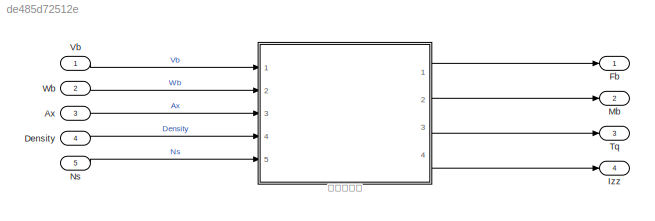
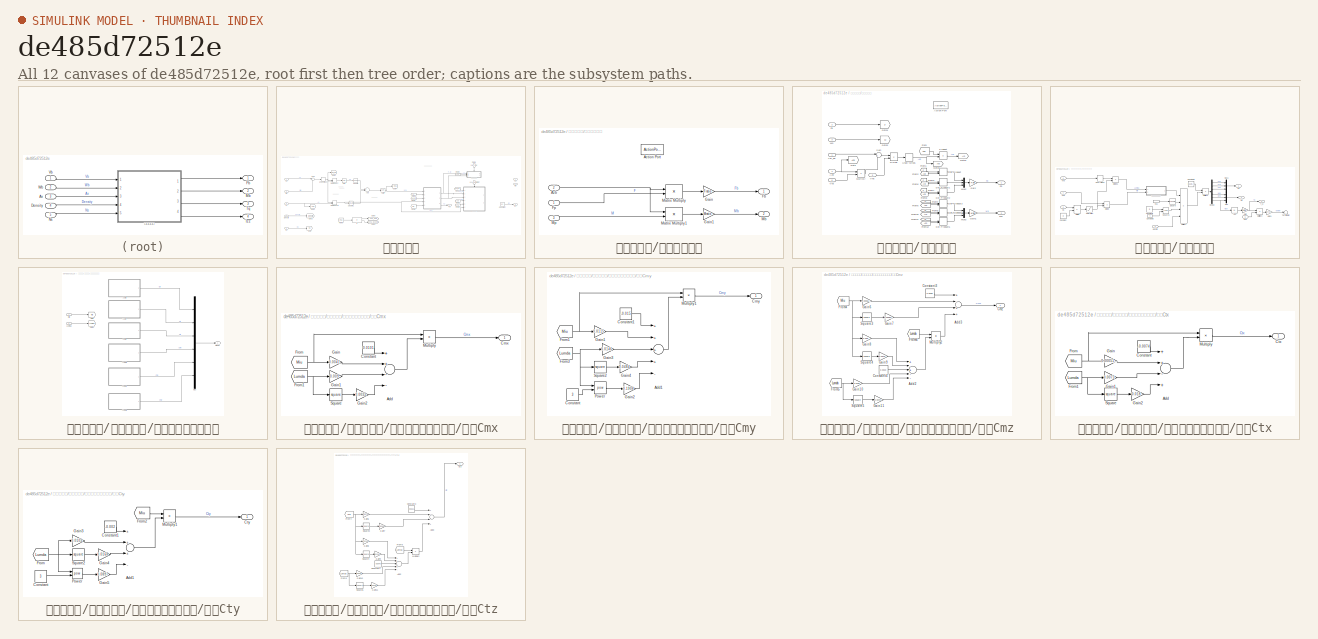
[diagram: thumbnail index - all 12 canvases of the model, root first then tree order]
MODEL slx_de485d72512e
KIND model
CONFIG AbsTol = auto
CONFIG EnableMultiTasking = off
CONFIG FixedStep = 0.02
CONFIG MaxStep = auto
CONFIG MinStep = auto
CONFIG RelTol = 1e-3
CONFIG SampleTimeConstraint = Unconstrained
CONFIG Solver = FixedStepAuto
CONFIG SolverName = FixedStepAuto
CONFIG StartTime = 0.0
CONFIG StopTime = 10.0
BLOCK [Inport] Ax
  IconDisplay = Port number
  Port = 3
  PortDimensions = 3
BLOCK [Inport] Density
  IconDisplay = Port number
  Port = 4
  PortDimensions = 1
BLOCK [Outport] Fb
  IconDisplay = Port number
BLOCK [Outport] Izz
  IconDisplay = Port number
  Port = 4
BLOCK [Outport] Mb
  IconDisplay = Port number
  Port = 2
BLOCK [Inport] Ns
  IconDisplay = Port number
  Port = 5
  PortDimensions = 1
BLOCK [Outport] Tq
  IconDisplay = Port number
  Port = 3
BLOCK [Inport] Vb
  IconDisplay = Port number
  PortDimensions = 3
BLOCK [Inport] Wb
  IconDisplay = Port number
  Port = 2
  PortDimensions = 3
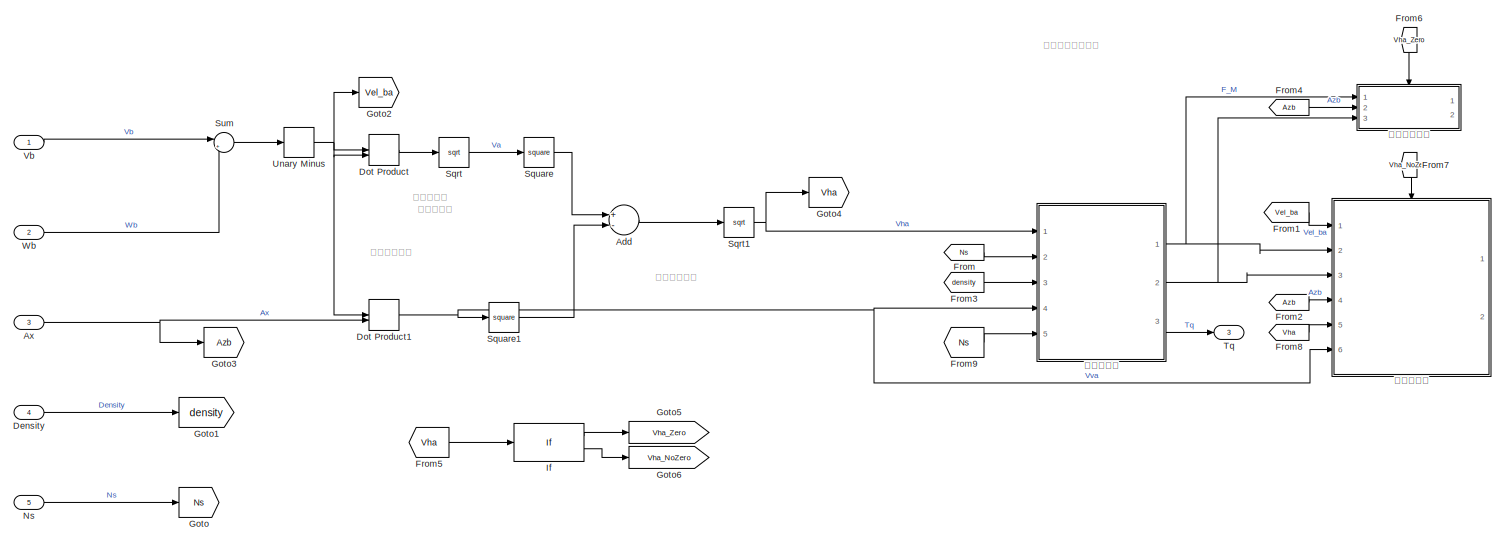
[diagram: 螺旋桨模型 - part 1/2, most of the canvas]
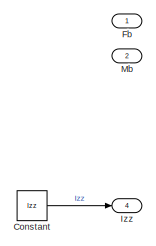
[diagram: 螺旋桨模型 - part 2/2, middle right region]
BLOCK [SubSystem] 螺旋桨模型
  Ports = [5, 4]
  RequestExecContextInheritance = off
BLOCK [Sum] 螺旋桨模型/Add
  InputSameDT = off
  Inputs = +-
  OutDataTypeStr = Inherit: Inherit via internal rule
  Ports = [2, 1]
  SaturateOnIntegerOverflow = off
BLOCK [Inport] 螺旋桨模型/Ax
  IconDisplay = Port number
  Port = 3
  PortDimensions = 3
BLOCK [Constant] 螺旋桨模型/Constant
  OutDataTypeStr = double
  Value = Izz
BLOCK [Inport] 螺旋桨模型/Density
  IconDisplay = Port number
  Port = 4
  PortDimensions = 1
BLOCK [DotProduct] 螺旋桨模型/Dot Product
  OutDataTypeStr = Inherit: Inherit via internal rule
BLOCK [DotProduct] 螺旋桨模型/Dot Product1
  OutDataTypeStr = Inherit: Inherit via internal rule
BLOCK [Outport] 螺旋桨模型/Fb
  IconDisplay = Port number
BLOCK [From] 螺旋桨模型/From
  GotoTag = Ns
BLOCK [From] 螺旋桨模型/From1
  GotoTag = Vel_ba
BLOCK [From] 螺旋桨模型/From2
  GotoTag = Azb
BLOCK [From] 螺旋桨模型/From3
  GotoTag = density
BLOCK [From] 螺旋桨模型/From4
  GotoTag = Azb
BLOCK [From] 螺旋桨模型/From5
  GotoTag = Vha
BLOCK [From] 螺旋桨模型/From6
  GotoTag = Vha_Zero
BLOCK [From] 螺旋桨模型/From7
  GotoTag = Vha_NoZero
BLOCK [From] 螺旋桨模型/From8
  GotoTag = Vha
BLOCK [From] 螺旋桨模型/From9
  GotoTag = Ns
BLOCK [Goto] 螺旋桨模型/Goto
  GotoTag = Ns
BLOCK [Goto] 螺旋桨模型/Goto1
  GotoTag = density
BLOCK [Goto] 螺旋桨模型/Goto2
  GotoTag = Vel_ba
BLOCK [Goto] 螺旋桨模型/Goto3
  GotoTag = Azb
BLOCK [Goto] 螺旋桨模型/Goto4
  GotoTag = Vha
BLOCK [Goto] 螺旋桨模型/Goto5
  GotoTag = Vha_Zero
BLOCK [Goto] 螺旋桨模型/Goto6
  GotoTag = Vha_NoZero
BLOCK [If] 螺旋桨模型/If
  IfExpression = u1 < 0.001
  Ports = [1, 2]
BLOCK [Outport] 螺旋桨模型/Izz
  IconDisplay = Port number
  Port = 4
BLOCK [Outport] 螺旋桨模型/Mb
  IconDisplay = Port number
  Port = 2
BLOCK [Inport] 螺旋桨模型/Ns
  IconDisplay = Port number
  Port = 5
  PortDimensions = 1
BLOCK [Sqrt] 螺旋桨模型/Sqrt
BLOCK [Sqrt] 螺旋桨模型/Sqrt1
BLOCK [Math] 螺旋桨模型/Square
  Operator = square
  Ports = [1, 1]
BLOCK [Math] 螺旋桨模型/Square1
  Operator = square
  Ports = [1, 1]
BLOCK [Sum] 螺旋桨模型/Sum
  IconShape = round
  InputSameDT = off
  Inputs = |+-
  OutDataTypeStr = Inherit: Inherit via internal rule
  Ports = [2, 1]
  SaturateOnIntegerOverflow = off
BLOCK [Outport] 螺旋桨模型/Tq
  IconDisplay = Port number
  Port = 3
BLOCK [UnaryMinus] 螺旋桨模型/Unary Minus
BLOCK [Inport] 螺旋桨模型/Vb
  IconDisplay = Port number
  PortDimensions = 3
BLOCK [Inport] 螺旋桨模型/Wb
  IconDisplay = Port number
  Port = 2
  PortDimensions = 3
BLOCK [SubSystem] 螺旋桨模型/不做坐标转换
  Ports = [3, 2, 0, 0, 0, 0, 0, 1]
  RequestExecContextInheritance = off
BLOCK [ActionPort] 螺旋桨模型/不做坐标转换/Action Port
  ActionType = then
BLOCK [Inport] 螺旋桨模型/不做坐标转换/Azb
  IconDisplay = Port number
  Port = 2
BLOCK [Outport] 螺旋桨模型/不做坐标转换/Fb
  IconDisplay = Port number
BLOCK [Inport] 螺旋桨模型/不做坐标转换/Fp
  IconDisplay = Port number
BLOCK [Gain] 螺旋桨模型/不做坐标转换/Gain
  Gain = Fratio
  OutDataTypeStr = Inherit: Inherit via internal rule
  ParamDataTypeStr = Inherit: Inherit via internal rule
  SaturateOnIntegerOverflow = off
BLOCK [Gain] 螺旋桨模型/不做坐标转换/Gain1
  Gain = Mratio
  OutDataTypeStr = Inherit: Inherit via internal rule
  ParamDataTypeStr = Inherit: Inherit via internal rule
  SaturateOnIntegerOverflow = off
BLOCK [Product] 螺旋桨模型/不做坐标转换/Matrix Multiply
  InputSameDT = off
  OutDataTypeStr = Inherit: Inherit via internal rule
  Ports = [2, 1]
  RndMeth = Floor
  SaturateOnIntegerOverflow = off
BLOCK [Product] 螺旋桨模型/不做坐标转换/Matrix Multiply1
  InputSameDT = off
  OutDataTypeStr = Inherit: Inherit via internal rule
  Ports = [2, 1]
  RndMeth = Floor
  SaturateOnIntegerOverflow = off
BLOCK [Outport] 螺旋桨模型/不做坐标转换/Mb
  IconDisplay = Port number
  Port = 2
BLOCK [Inport] 螺旋桨模型/不做坐标转换/Mp
  IconDisplay = Port number
  Port = 3
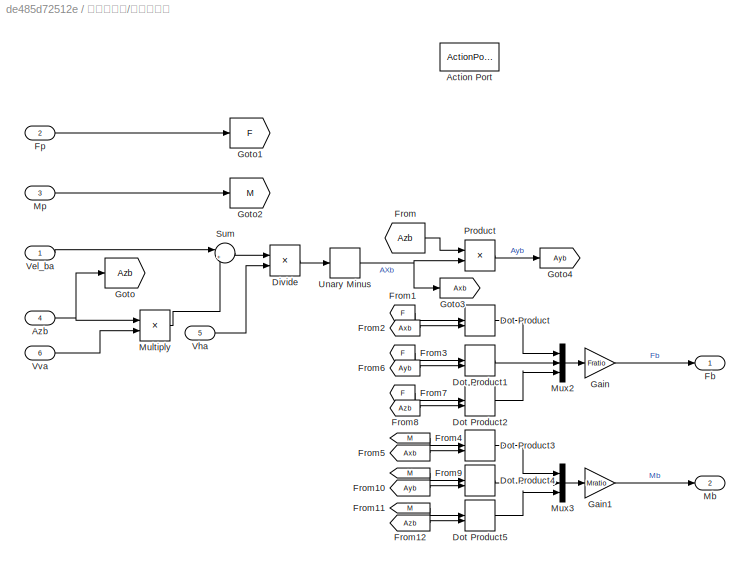
BLOCK [SubSystem] 螺旋桨模型/坐标系转换
  Ports = [6, 2, 0, 0, 0, 0, 0, 1]
  RequestExecContextInheritance = off
BLOCK [ActionPort] 螺旋桨模型/坐标系转换/Action Port
  ActionType = else
BLOCK [Inport] 螺旋桨模型/坐标系转换/Azb
  IconDisplay = Port number
  Port = 4
BLOCK [Product] 螺旋桨模型/坐标系转换/Divide
  InputSameDT = off
  Inputs = */
  OutDataTypeStr = Inherit: Inherit via internal rule
  Ports = [2, 1]
  RndMeth = Floor
  SaturateOnIntegerOverflow = off
BLOCK [DotProduct] 螺旋桨模型/坐标系转换/Dot Product
  OutDataTypeStr = Inherit: Inherit via internal rule
BLOCK [DotProduct] 螺旋桨模型/坐标系转换/Dot Product1
  OutDataTypeStr = Inherit: Inherit via internal rule
BLOCK [DotProduct] 螺旋桨模型/坐标系转换/Dot Product2
  OutDataTypeStr = Inherit: Inherit via internal rule
BLOCK [DotProduct] 螺旋桨模型/坐标系转换/Dot Product3
  OutDataTypeStr = Inherit: Inherit via internal rule
BLOCK [DotProduct] 螺旋桨模型/坐标系转换/Dot Product4
  OutDataTypeStr = Inherit: Inherit via internal rule
BLOCK [DotProduct] 螺旋桨模型/坐标系转换/Dot Product5
  OutDataTypeStr = Inherit: Inherit via internal rule
BLOCK [Outport] 螺旋桨模型/坐标系转换/Fb
  IconDisplay = Port number
BLOCK [Inport] 螺旋桨模型/坐标系转换/Fp
  IconDisplay = Port number
  Port = 2
BLOCK [From] 螺旋桨模型/坐标系转换/From
  GotoTag = Azb
BLOCK [From] 螺旋桨模型/坐标系转换/From1
  GotoTag = F
BLOCK [From] 螺旋桨模型/坐标系转换/From10
  GotoTag = Ayb
BLOCK [From] 螺旋桨模型/坐标系转换/From11
  GotoTag = M
BLOCK [From] 螺旋桨模型/坐标系转换/From12
  GotoTag = Azb
BLOCK [From] 螺旋桨模型/坐标系转换/From2
  GotoTag = Axb
BLOCK [From] 螺旋桨模型/坐标系转换/From3
  GotoTag = F
BLOCK [From] 螺旋桨模型/坐标系转换/From4
  GotoTag = M
BLOCK [From] 螺旋桨模型/坐标系转换/From5
  GotoTag = Axb
BLOCK [From] 螺旋桨模型/坐标系转换/From6
  GotoTag = Ayb
BLOCK [From] 螺旋桨模型/坐标系转换/From7
  GotoTag = F
BLOCK [From] 螺旋桨模型/坐标系转换/From8
  GotoTag = Azb
BLOCK [From] 螺旋桨模型/坐标系转换/From9
  GotoTag = M
BLOCK [Gain] 螺旋桨模型/坐标系转换/Gain
  Gain = Fratio
  OutDataTypeStr = Inherit: Inherit via internal rule
  ParamDataTypeStr = Inherit: Inherit via internal rule
  SaturateOnIntegerOverflow = off
BLOCK [Gain] 螺旋桨模型/坐标系转换/Gain1
  Gain = Mratio
  OutDataTypeStr = Inherit: Inherit via internal rule
  ParamDataTypeStr = Inherit: Inherit via internal rule
  SaturateOnIntegerOverflow = off
BLOCK [Goto] 螺旋桨模型/坐标系转换/Goto
  GotoTag = Azb
BLOCK [Goto] 螺旋桨模型/坐标系转换/Goto1
  GotoTag = F
BLOCK [Goto] 螺旋桨模型/坐标系转换/Goto2
  GotoTag = M
BLOCK [Goto] 螺旋桨模型/坐标系转换/Goto3
  GotoTag = Axb
BLOCK [Goto] 螺旋桨模型/坐标系转换/Goto4
  GotoTag = Ayb
BLOCK [Outport] 螺旋桨模型/坐标系转换/Mb
  IconDisplay = Port number
  Port = 2
BLOCK [Inport] 螺旋桨模型/坐标系转换/Mp
  IconDisplay = Port number
  Port = 3
BLOCK [Product] 螺旋桨模型/坐标系转换/Multiply
  InputSameDT = off
  OutDataTypeStr = Inherit: Inherit via internal rule
  Ports = [2, 1]
  RndMeth = Floor
  SaturateOnIntegerOverflow = off
BLOCK [Mux] 螺旋桨模型/坐标系转换/Mux2
  DisplayOption = bar
  Inputs = 3
  Ports = [3, 1]
BLOCK [Mux] 螺旋桨模型/坐标系转换/Mux3
  DisplayOption = bar
  Inputs = 3
  Ports = [3, 1]
BLOCK [Product] 螺旋桨模型/坐标系转换/Product
  InputSameDT = off
  OutDataTypeStr = Inherit: Inherit via internal rule
  Ports = [2, 1]
  RndMeth = Floor
  SaturateOnIntegerOverflow = off
BLOCK [Sum] 螺旋桨模型/坐标系转换/Sum
  IconShape = round
  InputSameDT = off
  Inputs = |+-
  OutDataTypeStr = Inherit: Inherit via internal rule
  Ports = [2, 1]
  SaturateOnIntegerOverflow = off
BLOCK [UnaryMinus] 螺旋桨模型/坐标系转换/Unary Minus
BLOCK [Inport] 螺旋桨模型/坐标系转换/Vel_ba
  IconDisplay = Port number
BLOCK [Inport] 螺旋桨模型/坐标系转换/Vha
  IconDisplay = Port number
  Port = 5
BLOCK [Inport] 螺旋桨模型/坐标系转换/Vva
  IconDisplay = Port number
  Port = 6
BLOCK [SubSystem] 螺旋桨模型/螺旋桨气动
  Ports = [5, 3]
  RequestExecContextInheritance = off
BLOCK [Abs] 螺旋桨模型/螺旋桨气动/Abs
  SaturateOnIntegerOverflow = off
BLOCK [Constant] 螺旋桨模型/螺旋桨气动/Constant
  Value = D
BLOCK [Constant] 螺旋桨模型/螺旋桨气动/Constant1
  Value = D
BLOCK [Constant] 螺旋桨模型/螺旋桨气动/Constant2
  Value = 4
BLOCK [Constant] 螺旋桨模型/螺旋桨气动/Constant3
  Value = [1;1; 1; D; D; D]
BLOCK [Demux] 螺旋桨模型/螺旋桨气动/Demux
  DisplayOption = bar
  Outputs = 6
  Ports = [1, 6]
BLOCK [Product] 螺旋桨模型/螺旋桨气动/Divide
  InputSameDT = off
  Inputs = */
  OutDataTypeStr = Inherit: Inherit via internal rule
  Ports = [2, 1]
  RndMeth = Floor
  SaturateOnIntegerOverflow = off
BLOCK [Product] 螺旋桨模型/螺旋桨气动/Divide1
  InputSameDT = off
  Inputs = */
  OutDataTypeStr = Inherit: Inherit via internal rule
  Ports = [2, 1]
  RndMeth = Floor
  SaturateOnIntegerOverflow = off
BLOCK [Outport] 螺旋桨模型/螺旋桨气动/Fp
  IconDisplay = Port number
BLOCK [Gain] 螺旋桨模型/螺旋桨气动/Gain
  Gain = Mratio
  OutDataTypeStr = Inherit: Inherit via internal rule
  ParamDataTypeStr = Inherit: Inherit via internal rule
  SaturateOnIntegerOverflow = off
BLOCK [Gain] 螺旋桨模型/螺旋桨气动/Gain1
  Gain = 2*pi
  OutDataTypeStr = Inherit: Inherit via internal rule
  ParamDataTypeStr = Inherit: Inherit via internal rule
  SaturateOnIntegerOverflow = off
BLOCK [Outport] 螺旋桨模型/螺旋桨气动/Mp
  IconDisplay = Port number
  Port = 2
BLOCK [Product] 螺旋桨模型/螺旋桨气动/Multiply
  InputSameDT = off
  OutDataTypeStr = Inherit: Inherit via internal rule
  Ports = [2, 1]
  RndMeth = Floor
  SaturateOnIntegerOverflow = off
BLOCK [Product] 螺旋桨模型/螺旋桨气动/Multiply1
  InputSameDT = off
  Inputs = 4
  OutDataTypeStr = Inherit: Inherit via internal rule
  Ports = [4, 1]
  RndMeth = Floor
  SaturateOnIntegerOverflow = off
BLOCK [Product] 螺旋桨模型/螺旋桨气动/Multiply2
  InputSameDT = off
  OutDataTypeStr = Inherit: Inherit via internal rule
  Ports = [2, 1]
  RndMeth = Floor
  SaturateOnIntegerOverflow = off
BLOCK [Product] 螺旋桨模型/螺旋桨气动/Multiply3
  InputSameDT = off
  OutDataTypeStr = Inherit: Inherit via internal rule
  Ports = [2, 1]
  RndMeth = Floor
  SaturateOnIntegerOverflow = off
BLOCK [Mux] 螺旋桨模型/螺旋桨气动/Mux
  DisplayOption = bar
  Inputs = 3
  Ports = [3, 1]
BLOCK [Mux] 螺旋桨模型/螺旋桨气动/Mux1
  DisplayOption = bar
  Inputs = 3
  Ports = [3, 1]
BLOCK [Inport] 螺旋桨模型/螺旋桨气动/Ns
  IconDisplay = Port number
  Port = 2
BLOCK [InportShadow] 螺旋桨模型/螺旋桨气动/Ns1
  IconDisplay = Port number
  Port = 2
BLOCK [Inport] 螺旋桨模型/螺旋桨气动/Ns2
  IconDisplay = Port number
  Port = 5
BLOCK [Saturate] 螺旋桨模型/螺旋桨气动/Saturation
  InputPortMap = u0
  LowerLimit = eps
  Ports = [1, 1]
  UpperLimit = inf
BLOCK [Math] 螺旋桨模型/螺旋桨气动/Square
  Operator = square
  Ports = [1, 1]
BLOCK [Math] 螺旋桨模型/螺旋桨气动/Square1
  Operator = pow
  OutputSignalType = real
  Ports = [2, 1]
BLOCK [Outport] 螺旋桨模型/螺旋桨气动/T_q
  IconDisplay = Port number
  Port = 3
BLOCK [Terminator] 螺旋桨模型/螺旋桨气动/Terminator
BLOCK [UnaryMinus] 螺旋桨模型/螺旋桨气动/Unary Minus
BLOCK [Inport] 螺旋桨模型/螺旋桨气动/Vha
  IconDisplay = Port number
BLOCK [Inport] 螺旋桨模型/螺旋桨气动/Vva
  IconDisplay = Port number
  Port = 4
BLOCK [Inport] 螺旋桨模型/螺旋桨气动/density
  IconDisplay = Port number
  Port = 3
BLOCK [SubSystem] 螺旋桨模型/螺旋桨气动/计算螺旋桨气动系数
  Ports = [2, 1]
  RequestExecContextInheritance = off
BLOCK [Outport] 螺旋桨模型/螺旋桨气动/计算螺旋桨气动系数/Ct&Cm
  IconDisplay = Port number
BLOCK [Goto] 螺旋桨模型/螺旋桨气动/计算螺旋桨气动系数/Goto
  GotoTag = Miu
  TagVisibility = global
BLOCK [Goto] 螺旋桨模型/螺旋桨气动/计算螺旋桨气动系数/Goto1
  GotoTag = Lumda
  TagVisibility = global
BLOCK [Inport] 螺旋桨模型/螺旋桨气动/计算螺旋桨气动系数/Lumda
  IconDisplay = Port number
BLOCK [Inport] 螺旋桨模型/螺旋桨气动/计算螺旋桨气动系数/Miu
  IconDisplay = Port number
  Port = 2
BLOCK [Mux] 螺旋桨模型/螺旋桨气动/计算螺旋桨气动系数/Mux
  DisplayOption = bar
  Inputs = 6
  Ports = [6, 1]
BLOCK [SubSystem] 螺旋桨模型/螺旋桨气动/计算螺旋桨气动系数/计算Cmx
  Ports = [0, 1]
  RequestExecContextInheritance = off
BLOCK [Sum] 螺旋桨模型/螺旋桨气动/计算螺旋桨气动系数/计算Cmx/Add
  InputSameDT = off
  Inputs = ++--
  OutDataTypeStr = Inherit: Inherit via internal rule
  Ports = [4, 1]
  SaturateOnIntegerOverflow = off
BLOCK [Outport] 螺旋桨模型/螺旋桨气动/计算螺旋桨气动系数/计算Cmx/Cmx
  IconDisplay = Port number
BLOCK [Constant] 螺旋桨模型/螺旋桨气动/计算螺旋桨气动系数/计算Cmx/Constant
  Value = 0.0101
BLOCK [From] 螺旋桨模型/螺旋桨气动/计算螺旋桨气动系数/计算Cmx/From
  GotoTag = Miu
  TagVisibility = global
BLOCK [From] 螺旋桨模型/螺旋桨气动/计算螺旋桨气动系数/计算Cmx/From1
  GotoTag = Lumda
  TagVisibility = global
BLOCK [Gain] 螺旋桨模型/螺旋桨气动/计算螺旋桨气动系数/计算Cmx/Gain
  Gain = 0.0041
  OutDataTypeStr = Inherit: Inherit via internal rule
  ParamDataTypeStr = Inherit: Inherit via internal rule
  SaturateOnIntegerOverflow = off
BLOCK [Gain] 螺旋桨模型/螺旋桨气动/计算螺旋桨气动系数/计算Cmx/Gain1
  Gain = 0.009
  OutDataTypeStr = Inherit: Inherit via internal rule
  ParamDataTypeStr = Inherit: Inherit via internal rule
  SaturateOnIntegerOverflow = off
BLOCK [Gain] 螺旋桨模型/螺旋桨气动/计算螺旋桨气动系数/计算Cmx/Gain2
  Gain = 0.0032
  OutDataTypeStr = Inherit: Inherit via internal rule
  ParamDataTypeStr = Inherit: Inherit via internal rule
  SaturateOnIntegerOverflow = off
BLOCK [Product] 螺旋桨模型/螺旋桨气动/计算螺旋桨气动系数/计算Cmx/Multiply
  InputSameDT = off
  OutDataTypeStr = Inherit: Inherit via internal rule
  Ports = [2, 1]
  RndMeth = Floor
  SaturateOnIntegerOverflow = off
BLOCK [Math] 螺旋桨模型/螺旋桨气动/计算螺旋桨气动系数/计算Cmx/Square
  Operator = square
  Ports = [1, 1]
BLOCK [SubSystem] 螺旋桨模型/螺旋桨气动/计算螺旋桨气动系数/计算Cmy
  Ports = [0, 1]
  RequestExecContextInheritance = off
BLOCK [Sum] 螺旋桨模型/螺旋桨气动/计算螺旋桨气动系数/计算Cmy/Add1
  InputSameDT = off
  Inputs = ++++-
  OutDataTypeStr = Inherit: Inherit via internal rule
  Ports = [5, 1]
  SaturateOnIntegerOverflow = off
BLOCK [Outport] 螺旋桨模型/螺旋桨气动/计算螺旋桨气动系数/计算Cmy/Cmy
  IconDisplay = Port number
BLOCK [Constant] 螺旋桨模型/螺旋桨气动/计算螺旋桨气动系数/计算Cmy/Constant
  Value = 3
BLOCK [Constant] 螺旋桨模型/螺旋桨气动/计算螺旋桨气动系数/计算Cmy/Constant1
  Value = -0.015
BLOCK [From] 螺旋桨模型/螺旋桨气动/计算螺旋桨气动系数/计算Cmy/From1
  GotoTag = Miu
  TagVisibility = global
BLOCK [From] 螺旋桨模型/螺旋桨气动/计算螺旋桨气动系数/计算Cmy/From3
  GotoTag = Lumda
  TagVisibility = global
BLOCK [Gain] 螺旋桨模型/螺旋桨气动/计算螺旋桨气动系数/计算Cmy/Gain1
  Gain = 0.0115
  OutDataTypeStr = Inherit: Inherit via internal rule
  ParamDataTypeStr = Inherit: Inherit via internal rule
  SaturateOnIntegerOverflow = off
BLOCK [Gain] 螺旋桨模型/螺旋桨气动/计算螺旋桨气动系数/计算Cmy/Gain2
  Gain = 0.1908
  OutDataTypeStr = Inherit: Inherit via internal rule
  ParamDataTypeStr = Inherit: Inherit via internal rule
  SaturateOnIntegerOverflow = off
BLOCK [Gain] 螺旋桨模型/螺旋桨气动/计算螺旋桨气动系数/计算Cmy/Gain3
  Gain = 0.0146
  OutDataTypeStr = Inherit: Inherit via internal rule
  ParamDataTypeStr = Inherit: Inherit via internal rule
  SaturateOnIntegerOverflow = off
BLOCK [Gain] 螺旋桨模型/螺旋桨气动/计算螺旋桨气动系数/计算Cmy/Gain4
  Gain = 0.0484
  OutDataTypeStr = Inherit: Inherit via internal rule
  ParamDataTypeStr = Inherit: Inherit via internal rule
  SaturateOnIntegerOverflow = off
BLOCK [Product] 螺旋桨模型/螺旋桨气动/计算螺旋桨气动系数/计算Cmy/Multiply1
  InputSameDT = off
  OutDataTypeStr = Inherit: Inherit via internal rule
  Ports = [2, 1]
  RndMeth = Floor
  SaturateOnIntegerOverflow = off
BLOCK [Math] 螺旋桨模型/螺旋桨气动/计算螺旋桨气动系数/计算Cmy/Power
  Operator = pow
  Ports = [2, 1]
BLOCK [Math] 螺旋桨模型/螺旋桨气动/计算螺旋桨气动系数/计算Cmy/Square2
  Operator = square
  Ports = [1, 1]
BLOCK [SubSystem] 螺旋桨模型/螺旋桨气动/计算螺旋桨气动系数/计算Cmz
  Ports = [0, 1]
  RequestExecContextInheritance = off
BLOCK [Sum] 螺旋桨模型/螺旋桨气动/计算螺旋桨气动系数/计算Cmz/Add2
  InputSameDT = off
  Inputs = +-+--
  OutDataTypeStr = Inherit: Inherit via internal rule
  Ports = [5, 1]
  SaturateOnIntegerOverflow = off
BLOCK [Sum] 螺旋桨模型/螺旋桨气动/计算螺旋桨气动系数/计算Cmz/Add3
  InputSameDT = off
  Inputs = +-++
  OutDataTypeStr = Inherit: Inherit via internal rule
  Ports = [4, 1]
  SaturateOnIntegerOverflow = off
BLOCK [Outport] 螺旋桨模型/螺旋桨气动/计算螺旋桨气动系数/计算Cmz/Cmz
  IconDisplay = Port number
BLOCK [Constant] 螺旋桨模型/螺旋桨气动/计算螺旋桨气动系数/计算Cmz/Constant3
  Value = 0.0036
BLOCK [Constant] 螺旋桨模型/螺旋桨气动/计算螺旋桨气动系数/计算Cmz/Constant4
  Value = 0.0023
BLOCK [From] 螺旋桨模型/螺旋桨气动/计算螺旋桨气动系数/计算Cmz/From4
  GotoTag = Miu
  TagVisibility = global
BLOCK [From] 螺旋桨模型/螺旋桨气动/计算螺旋桨气动系数/计算Cmz/From5
  GotoTag = Lumda
  TagVisibility = global
BLOCK [From] 螺旋桨模型/螺旋桨气动/计算螺旋桨气动系数/计算Cmz/From6
  GotoTag = Lumda
  TagVisibility = global
BLOCK [Gain] 螺旋桨模型/螺旋桨气动/计算螺旋桨气动系数/计算Cmz/Gain10
  Gain = 0.0105
  OutDataTypeStr = Inherit: Inherit via internal rule
  ParamDataTypeStr = Inherit: Inherit via internal rule
  SaturateOnIntegerOverflow = off
BLOCK [Gain] 螺旋桨模型/螺旋桨气动/计算螺旋桨气动系数/计算Cmz/Gain11
  Gain = 0.0078
  OutDataTypeStr = Inherit: Inherit via internal rule
  ParamDataTypeStr = Inherit: Inherit via internal rule
  SaturateOnIntegerOverflow = off
BLOCK [Gain] 螺旋桨模型/螺旋桨气动/计算螺旋桨气动系数/计算Cmz/Gain6
  Gain = 0.0006554
  OutDataTypeStr = Inherit: Inherit via internal rule
  ParamDataTypeStr = Inherit: Inherit via internal rule
  SaturateOnIntegerOverflow = off
BLOCK [Gain] 螺旋桨模型/螺旋桨气动/计算螺旋桨气动系数/计算Cmz/Gain7
  Gain = 0.00080732
  OutDataTypeStr = Inherit: Inherit via internal rule
  ParamDataTypeStr = Inherit: Inherit via internal rule
  SaturateOnIntegerOverflow = off
BLOCK [Gain] 螺旋桨模型/螺旋桨气动/计算螺旋桨气动系数/计算Cmz/Gain8
  Gain = 0.006
  OutDataTypeStr = Inherit: Inherit via internal rule
  ParamDataTypeStr = Inherit: Inherit via internal rule
  SaturateOnIntegerOverflow = off
BLOCK [Gain] 螺旋桨模型/螺旋桨气动/计算螺旋桨气动系数/计算Cmz/Gain9
  Gain = 0.0043
  OutDataTypeStr = Inherit: Inherit via internal rule
  ParamDataTypeStr = Inherit: Inherit via internal rule
  SaturateOnIntegerOverflow = off
BLOCK [Product] 螺旋桨模型/螺旋桨气动/计算螺旋桨气动系数/计算Cmz/Multiply2
  InputSameDT = off
  OutDataTypeStr = Inherit: Inherit via internal rule
  Ports = [2, 1]
  RndMeth = Floor
  SaturateOnIntegerOverflow = off
BLOCK [Math] 螺旋桨模型/螺旋桨气动/计算螺旋桨气动系数/计算Cmz/Square3
  Operator = square
  Ports = [1, 1]
BLOCK [Math] 螺旋桨模型/螺旋桨气动/计算螺旋桨气动系数/计算Cmz/Square4
  Operator = square
  Ports = [1, 1]
BLOCK [Math] 螺旋桨模型/螺旋桨气动/计算螺旋桨气动系数/计算Cmz/Square5
  Operator = square
  Ports = [1, 1]
BLOCK [SubSystem] 螺旋桨模型/螺旋桨气动/计算螺旋桨气动系数/计算Ctx
  Ports = [0, 1]
  RequestExecContextInheritance = off
BLOCK [Sum] 螺旋桨模型/螺旋桨气动/计算螺旋桨气动系数/计算Ctx/Add
  InputSameDT = off
  Inputs = ++-+
  OutDataTypeStr = Inherit: Inherit via internal rule
  Ports = [4, 1]
  SaturateOnIntegerOverflow = off
BLOCK [Constant] 螺旋桨模型/螺旋桨气动/计算螺旋桨气动系数/计算Ctx/Constant
  Value = -0.0074
BLOCK [Outport] 螺旋桨模型/螺旋桨气动/计算螺旋桨气动系数/计算Ctx/Ctx
  IconDisplay = Port number
BLOCK [From] 螺旋桨模型/螺旋桨气动/计算螺旋桨气动系数/计算Ctx/From
  GotoTag = Miu
  TagVisibility = global
BLOCK [From] 螺旋桨模型/螺旋桨气动/计算螺旋桨气动系数/计算Ctx/From1
  GotoTag = Lumda
  TagVisibility = global
BLOCK [Gain] 螺旋桨模型/螺旋桨气动/计算螺旋桨气动系数/计算Ctx/Gain
  Gain = 0.00051704
  OutDataTypeStr = Inherit: Inherit via internal rule
  ParamDataTypeStr = Inherit: Inherit via internal rule
  SaturateOnIntegerOverflow = off
BLOCK [Gain] 螺旋桨模型/螺旋桨气动/计算螺旋桨气动系数/计算Ctx/Gain1
  Gain = 0.0073
  OutDataTypeStr = Inherit: Inherit via internal rule
  ParamDataTypeStr = Inherit: Inherit via internal rule
  SaturateOnIntegerOverflow = off
BLOCK [Gain] 螺旋桨模型/螺旋桨气动/计算螺旋桨气动系数/计算Ctx/Gain2
  Gain = 0.018
  OutDataTypeStr = Inherit: Inherit via internal rule
  ParamDataTypeStr = Inherit: Inherit via internal rule
  SaturateOnIntegerOverflow = off
BLOCK [Product] 螺旋桨模型/螺旋桨气动/计算螺旋桨气动系数/计算Ctx/Multiply
  InputSameDT = off
  OutDataTypeStr = Inherit: Inherit via internal rule
  Ports = [2, 1]
  RndMeth = Floor
  SaturateOnIntegerOverflow = off
BLOCK [Math] 螺旋桨模型/螺旋桨气动/计算螺旋桨气动系数/计算Ctx/Square
  Operator = square
  Ports = [1, 1]
BLOCK [SubSystem] 螺旋桨模型/螺旋桨气动/计算螺旋桨气动系数/计算Cty
  Ports = [0, 1]
  RequestExecContextInheritance = off
BLOCK [Sum] 螺旋桨模型/螺旋桨气动/计算螺旋桨气动系数/计算Cty/Add1
  InputSameDT = off
  Inputs = +++-
  OutDataTypeStr = Inherit: Inherit via internal rule
  Ports = [4, 1]
  SaturateOnIntegerOverflow = off
BLOCK [Constant] 螺旋桨模型/螺旋桨气动/计算螺旋桨气动系数/计算Cty/Constant
  Value = 3
BLOCK [Constant] 螺旋桨模型/螺旋桨气动/计算螺旋桨气动系数/计算Cty/Constant1
  OutDataTypeStr = double
  Value = -0.002
BLOCK [Outport] 螺旋桨模型/螺旋桨气动/计算螺旋桨气动系数/计算Cty/Cty
  IconDisplay = Port number
BLOCK [From] 螺旋桨模型/螺旋桨气动/计算螺旋桨气动系数/计算Cty/From
  GotoTag = Lumda
  TagVisibility = global
BLOCK [From] 螺旋桨模型/螺旋桨气动/计算螺旋桨气动系数/计算Cty/From2
  GotoTag = Miu
  TagVisibility = global
BLOCK [Gain] 螺旋桨模型/螺旋桨气动/计算螺旋桨气动系数/计算Cty/Gain3
  Gain = 0.0103
  OutDataTypeStr = Inherit: Inherit via internal rule
  ParamDataTypeStr = Inherit: Inherit via internal rule
  SaturateOnIntegerOverflow = off
BLOCK [Gain] 螺旋桨模型/螺旋桨气动/计算螺旋桨气动系数/计算Cty/Gain4
  Gain = 0.0168
  OutDataTypeStr = Inherit: Inherit via internal rule
  ParamDataTypeStr = Inherit: Inherit via internal rule
  SaturateOnIntegerOverflow = off
BLOCK [Gain] 螺旋桨模型/螺旋桨气动/计算螺旋桨气动系数/计算Cty/Gain5
  Gain = 0.0897
  OutDataTypeStr = Inherit: Inherit via internal rule
  ParamDataTypeStr = Inherit: Inherit via internal rule
  SaturateOnIntegerOverflow = off
BLOCK [Product] 螺旋桨模型/螺旋桨气动/计算螺旋桨气动系数/计算Cty/Multiply1
  InputSameDT = off
  OutDataTypeStr = Inherit: Inherit via internal rule
  Ports = [2, 1]
  RndMeth = Floor
  SaturateOnIntegerOverflow = off
BLOCK [Math] 螺旋桨模型/螺旋桨气动/计算螺旋桨气动系数/计算Cty/Power
  Operator = pow
  Ports = [2, 1]
BLOCK [Math] 螺旋桨模型/螺旋桨气动/计算螺旋桨气动系数/计算Cty/Square2
  Operator = square
  Ports = [1, 1]
BLOCK [SubSystem] 螺旋桨模型/螺旋桨气动/计算螺旋桨气动系数/计算Ctz
  Ports = [0, 1]
  RequestExecContextInheritance = off
BLOCK [Sum] 螺旋桨模型/螺旋桨气动/计算螺旋桨气动系数/计算Ctz/Add2
  InputSameDT = off
  Inputs = ++-+-
  OutDataTypeStr = Inherit: Inherit via internal rule
  Ports = [5, 1]
  SaturateOnIntegerOverflow = off
BLOCK [Sum] 螺旋桨模型/螺旋桨气动/计算螺旋桨气动系数/计算Ctz/Add3
  InputSameDT = off
  Inputs = ++-+
  OutDataTypeStr = Inherit: Inherit via internal rule
  Ports = [4, 1]
  SaturateOnIntegerOverflow = off
BLOCK [Constant] 螺旋桨模型/螺旋桨气动/计算螺旋桨气动系数/计算Ctz/Constant3
  Value = 0.0651
BLOCK [Constant] 螺旋桨模型/螺旋桨气动/计算螺旋桨气动系数/计算Ctz/Constant4
  Value = 0.0845
BLOCK [Outport] 螺旋桨模型/螺旋桨气动/计算螺旋桨气动系数/计算Ctz/Ctz
  IconDisplay = Port number
BLOCK [From] 螺旋桨模型/螺旋桨气动/计算螺旋桨气动系数/计算Ctz/From4
  GotoTag = Miu
  TagVisibility = global
BLOCK [From] 螺旋桨模型/螺旋桨气动/计算螺旋桨气动系数/计算Ctz/From5
  GotoTag = Lumda
  TagVisibility = global
BLOCK [From] 螺旋桨模型/螺旋桨气动/计算螺旋桨气动系数/计算Ctz/From6
  GotoTag = Lumda
  TagVisibility = global
BLOCK [Gain] 螺旋桨模型/螺旋桨气动/计算螺旋桨气动系数/计算Ctz/Gain10
  Gain = 0.0583
  OutDataTypeStr = Inherit: Inherit via internal rule
  ParamDataTypeStr = Inherit: Inherit via internal rule
  SaturateOnIntegerOverflow = off
BLOCK [Gain] 螺旋桨模型/螺旋桨气动/计算螺旋桨气动系数/计算Ctz/Gain11
  Gain = 0.3529
  OutDataTypeStr = Inherit: Inherit via internal rule
  ParamDataTypeStr = Inherit: Inherit via internal rule
  SaturateOnIntegerOverflow = off
BLOCK [Gain] 螺旋桨模型/螺旋桨气动/计算螺旋桨气动系数/计算Ctz/Gain6
  Gain = 0.0579
  OutDataTypeStr = Inherit: Inherit via internal rule
  ParamDataTypeStr = Inherit: Inherit via internal rule
  SaturateOnIntegerOverflow = off
BLOCK [Gain] 螺旋桨模型/螺旋桨气动/计算螺旋桨气动系数/计算Ctz/Gain7
  Gain = 0.0066
  OutDataTypeStr = Inherit: Inherit via internal rule
  ParamDataTypeStr = Inherit: Inherit via internal rule
  SaturateOnIntegerOverflow = off
BLOCK [Gain] 螺旋桨模型/螺旋桨气动/计算螺旋桨气动系数/计算Ctz/Gain8
  Gain = -0.2325
  OutDataTypeStr = Inherit: Inherit via internal rule
  ParamDataTypeStr = Inherit: Inherit via internal rule
  SaturateOnIntegerOverflow = off
BLOCK [Gain] 螺旋桨模型/螺旋桨气动/计算螺旋桨气动系数/计算Ctz/Gain9
  Gain = 0.1346
  OutDataTypeStr = Inherit: Inherit via internal rule
  ParamDataTypeStr = Inherit: Inherit via internal rule
  SaturateOnIntegerOverflow = off
BLOCK [Product] 螺旋桨模型/螺旋桨气动/计算螺旋桨气动系数/计算Ctz/Multiply2
  InputSameDT = off
  OutDataTypeStr = Inherit: Inherit via internal rule
  Ports = [2, 1]
  RndMeth = Floor
  SaturateOnIntegerOverflow = off
BLOCK [Math] 螺旋桨模型/螺旋桨气动/计算螺旋桨气动系数/计算Ctz/Square3
  Operator = square
  Ports = [1, 1]
BLOCK [Math] 螺旋桨模型/螺旋桨气动/计算螺旋桨气动系数/计算Ctz/Square4
  Operator = square
  Ports = [1, 1]
BLOCK [Math] 螺旋桨模型/螺旋桨气动/计算螺旋桨气动系数/计算Ctz/Square5
  Operator = square
  Ports = [1, 1]
ANNOTATION 螺旋桨模型: 未考虑低转速情况
ANNOTATION 螺旋桨模型: 求解切向速度
ANNOTATION 螺旋桨模型: 求解合速度
ANNOTATION 螺旋桨模型: 求解轴向速度
LINE Ax:1 -> 螺旋桨模型:3
LINE Density:1 -> 螺旋桨模型:4
LINE Ns:1 -> 螺旋桨模型:5
LINE Vb:1 -> 螺旋桨模型:1
LINE Wb:1 -> 螺旋桨模型:2
LINE 螺旋桨模型/Add:1 -> 螺旋桨模型/Sqrt1:1
NET 螺旋桨模型/Ax:1 -> 螺旋桨模型/Dot Product1:2, 螺旋桨模型/Goto3:1
LINE 螺旋桨模型/Constant:1 -> 螺旋桨模型/Izz:1
LINE 螺旋桨模型/Density:1 -> 螺旋桨模型/Goto1:1
NET 螺旋桨模型/Dot Product1:1 -> 螺旋桨模型/Square1:1, 螺旋桨模型/坐标系转换:6, 螺旋桨模型/螺旋桨气动:4
LINE 螺旋桨模型/Dot Product:1 -> 螺旋桨模型/Sqrt:1
LINE 螺旋桨模型/From1:1 -> 螺旋桨模型/坐标系转换:1
LINE 螺旋桨模型/From2:1 -> 螺旋桨模型/坐标系转换:4
LINE 螺旋桨模型/From3:1 -> 螺旋桨模型/螺旋桨气动:3
LINE 螺旋桨模型/From4:1 -> 螺旋桨模型/不做坐标转换:2
LINE 螺旋桨模型/From5:1 -> 螺旋桨模型/If:1
LINE 螺旋桨模型/From6:1 -> 螺旋桨模型/不做坐标转换:ifaction
LINE 螺旋桨模型/From7:1 -> 螺旋桨模型/坐标系转换:ifaction
LINE 螺旋桨模型/From8:1 -> 螺旋桨模型/坐标系转换:5
LINE 螺旋桨模型/From9:1 -> 螺旋桨模型/螺旋桨气动:5
LINE 螺旋桨模型/From:1 -> 螺旋桨模型/螺旋桨气动:2
LINE 螺旋桨模型/If:1 -> 螺旋桨模型/Goto5:1
LINE 螺旋桨模型/If:2 -> 螺旋桨模型/Goto6:1
LINE 螺旋桨模型/Ns:1 -> 螺旋桨模型/Goto:1
NET 螺旋桨模型/Sqrt1:1 -> 螺旋桨模型/Goto4:1, 螺旋桨模型/螺旋桨气动:1
LINE 螺旋桨模型/Sqrt:1 -> 螺旋桨模型/Square:1
LINE 螺旋桨模型/Square1:1 -> 螺旋桨模型/Add:2
LINE 螺旋桨模型/Square:1 -> 螺旋桨模型/Add:1
LINE 螺旋桨模型/Sum:1 -> 螺旋桨模型/Unary Minus:1
NET 螺旋桨模型/Unary Minus:1 -> 螺旋桨模型/Dot Product1:1, 螺旋桨模型/Dot Product:1, 螺旋桨模型/Dot Product:2, 螺旋桨模型/Goto2:1
LINE 螺旋桨模型/Vb:1 -> 螺旋桨模型/Sum:1
LINE 螺旋桨模型/Wb:1 -> 螺旋桨模型/Sum:2
NET 螺旋桨模型/不做坐标转换/Azb:1 -> 螺旋桨模型/不做坐标转换/Matrix Multiply1:1, 螺旋桨模型/不做坐标转换/Matrix Multiply:1
LINE 螺旋桨模型/不做坐标转换/Fp:1 -> 螺旋桨模型/不做坐标转换/Matrix Multiply:2
LINE 螺旋桨模型/不做坐标转换/Gain1:1 -> 螺旋桨模型/不做坐标转换/Mb:1
LINE 螺旋桨模型/不做坐标转换/Gain:1 -> 螺旋桨模型/不做坐标转换/Fb:1
LINE 螺旋桨模型/不做坐标转换/Matrix Multiply1:1 -> 螺旋桨模型/不做坐标转换/Gain1:1
LINE 螺旋桨模型/不做坐标转换/Matrix Multiply:1 -> 螺旋桨模型/不做坐标转换/Gain:1
LINE 螺旋桨模型/不做坐标转换/Mp:1 -> 螺旋桨模型/不做坐标转换/Matrix Multiply1:2
NET 螺旋桨模型/坐标系转换/Azb:1 -> 螺旋桨模型/坐标系转换/Goto:1, 螺旋桨模型/坐标系转换/Multiply:1
LINE 螺旋桨模型/坐标系转换/Divide:1 -> 螺旋桨模型/坐标系转换/Unary Minus:1
LINE 螺旋桨模型/坐标系转换/Dot Product1:1 -> 螺旋桨模型/坐标系转换/Mux2:2
LINE 螺旋桨模型/坐标系转换/Dot Product2:1 -> 螺旋桨模型/坐标系转换/Mux2:3
LINE 螺旋桨模型/坐标系转换/Dot Product3:1 -> 螺旋桨模型/坐标系转换/Mux3:1
LINE 螺旋桨模型/坐标系转换/Dot Product4:1 -> 螺旋桨模型/坐标系转换/Mux3:2
LINE 螺旋桨模型/坐标系转换/Dot Product5:1 -> 螺旋桨模型/坐标系转换/Mux3:3
LINE 螺旋桨模型/坐标系转换/Dot Product:1 -> 螺旋桨模型/坐标系转换/Mux2:1
LINE 螺旋桨模型/坐标系转换/Fp:1 -> 螺旋桨模型/坐标系转换/Goto1:1
LINE 螺旋桨模型/坐标系转换/From10:1 -> 螺旋桨模型/坐标系转换/Dot Product4:2
LINE 螺旋桨模型/坐标系转换/From11:1 -> 螺旋桨模型/坐标系转换/Dot Product5:1
LINE 螺旋桨模型/坐标系转换/From12:1 -> 螺旋桨模型/坐标系转换/Dot Product5:2
LINE 螺旋桨模型/坐标系转换/From1:1 -> 螺旋桨模型/坐标系转换/Dot Product:1
LINE 螺旋桨模型/坐标系转换/From2:1 -> 螺旋桨模型/坐标系转换/Dot Product:2
LINE 螺旋桨模型/坐标系转换/From3:1 -> 螺旋桨模型/坐标系转换/Dot Product1:1
LINE 螺旋桨模型/坐标系转换/From4:1 -> 螺旋桨模型/坐标系转换/Dot Product3:1
LINE 螺旋桨模型/坐标系转换/From5:1 -> 螺旋桨模型/坐标系转换/Dot Product3:2
LINE 螺旋桨模型/坐标系转换/From6:1 -> 螺旋桨模型/坐标系转换/Dot Product1:2
LINE 螺旋桨模型/坐标系转换/From7:1 -> 螺旋桨模型/坐标系转换/Dot Product2:1
LINE 螺旋桨模型/坐标系转换/From8:1 -> 螺旋桨模型/坐标系转换/Dot Product2:2
LINE 螺旋桨模型/坐标系转换/From9:1 -> 螺旋桨模型/坐标系转换/Dot Product4:1
LINE 螺旋桨模型/坐标系转换/From:1 -> 螺旋桨模型/坐标系转换/Product:1
LINE 螺旋桨模型/坐标系转换/Gain1:1 -> 螺旋桨模型/坐标系转换/Mb:1
LINE 螺旋桨模型/坐标系转换/Gain:1 -> 螺旋桨模型/坐标系转换/Fb:1
LINE 螺旋桨模型/坐标系转换/Mp:1 -> 螺旋桨模型/坐标系转换/Goto2:1
LINE 螺旋桨模型/坐标系转换/Multiply:1 -> 螺旋桨模型/坐标系转换/Sum:2
LINE 螺旋桨模型/坐标系转换/Mux2:1 -> 螺旋桨模型/坐标系转换/Gain:1
LINE 螺旋桨模型/坐标系转换/Mux3:1 -> 螺旋桨模型/坐标系转换/Gain1:1
LINE 螺旋桨模型/坐标系转换/Product:1 -> 螺旋桨模型/坐标系转换/Goto4:1
LINE 螺旋桨模型/坐标系转换/Sum:1 -> 螺旋桨模型/坐标系转换/Divide:1
NET 螺旋桨模型/坐标系转换/Unary Minus:1 -> 螺旋桨模型/坐标系转换/Goto3:1, 螺旋桨模型/坐标系转换/Product:2
LINE 螺旋桨模型/坐标系转换/Vel_ba:1 -> 螺旋桨模型/坐标系转换/Sum:1
LINE 螺旋桨模型/坐标系转换/Vha:1 -> 螺旋桨模型/坐标系转换/Divide:2
LINE 螺旋桨模型/坐标系转换/Vva:1 -> 螺旋桨模型/坐标系转换/Multiply:2
LINE 螺旋桨模型/螺旋桨气动/Abs:1 -> 螺旋桨模型/螺旋桨气动/Gain:1
LINE 螺旋桨模型/螺旋桨气动/Constant1:1 -> 螺旋桨模型/螺旋桨气动/Square1:1
LINE 螺旋桨模型/螺旋桨气动/Constant2:1 -> 螺旋桨模型/螺旋桨气动/Square1:2
LINE 螺旋桨模型/螺旋桨气动/Constant3:1 -> 螺旋桨模型/螺旋桨气动/Multiply2:1
LINE 螺旋桨模型/螺旋桨气动/Constant:1 -> 螺旋桨模型/螺旋桨气动/Multiply:2
LINE 螺旋桨模型/螺旋桨气动/Demux:1 -> 螺旋桨模型/螺旋桨气动/Mux1:1
LINE 螺旋桨模型/螺旋桨气动/Demux:2 -> 螺旋桨模型/螺旋桨气动/Mux1:2
LINE 螺旋桨模型/螺旋桨气动/Demux:3 -> 螺旋桨模型/螺旋桨气动/Mux1:3
LINE 螺旋桨模型/螺旋桨气动/Demux:4 -> 螺旋桨模型/螺旋桨气动/Mux:1
LINE 螺旋桨模型/螺旋桨气动/Demux:5 -> 螺旋桨模型/螺旋桨气动/Mux:2
NET 螺旋桨模型/螺旋桨气动/Demux:6 -> 螺旋桨模型/螺旋桨气动/Abs:1, 螺旋桨模型/螺旋桨气动/Mux:3
LINE 螺旋桨模型/螺旋桨气动/Divide1:1 -> 螺旋桨模型/螺旋桨气动/计算螺旋桨气动系数:1
LINE 螺旋桨模型/螺旋桨气动/Divide:1 -> 螺旋桨模型/螺旋桨气动/计算螺旋桨气动系数:2
LINE 螺旋桨模型/螺旋桨气动/Gain1:1 -> 螺旋桨模型/螺旋桨气动/Terminator:1
NET 螺旋桨模型/螺旋桨气动/Gain:1 -> 螺旋桨模型/螺旋桨气动/Multiply3:1, 螺旋桨模型/螺旋桨气动/T_q:1
LINE 螺旋桨模型/螺旋桨气动/Multiply1:1 -> 螺旋桨模型/螺旋桨气动/Multiply2:2
LINE 螺旋桨模型/螺旋桨气动/Multiply2:1 -> 螺旋桨模型/螺旋桨气动/Demux:1
LINE 螺旋桨模型/螺旋桨气动/Multiply3:1 -> 螺旋桨模型/螺旋桨气动/Gain1:1
LINE 螺旋桨模型/螺旋桨气动/Multiply:1 -> 螺旋桨模型/螺旋桨气动/Saturation:1
LINE 螺旋桨模型/螺旋桨气动/Mux1:1 -> 螺旋桨模型/螺旋桨气动/Fp:1
LINE 螺旋桨模型/螺旋桨气动/Mux:1 -> 螺旋桨模型/螺旋桨气动/Mp:1
LINE 螺旋桨模型/螺旋桨气动/Ns1:1 -> 螺旋桨模型/螺旋桨气动/Square:1
LINE 螺旋桨模型/螺旋桨气动/Ns2:1 -> 螺旋桨模型/螺旋桨气动/Multiply3:2
LINE 螺旋桨模型/螺旋桨气动/Ns:1 -> 螺旋桨模型/螺旋桨气动/Multiply:1
NET 螺旋桨模型/螺旋桨气动/Saturation:1 -> 螺旋桨模型/螺旋桨气动/Divide1:2, 螺旋桨模型/螺旋桨气动/Divide:2
LINE 螺旋桨模型/螺旋桨气动/Square1:1 -> 螺旋桨模型/螺旋桨气动/Multiply1:3
LINE 螺旋桨模型/螺旋桨气动/Square:1 -> 螺旋桨模型/螺旋桨气动/Multiply1:2
LINE 螺旋桨模型/螺旋桨气动/Unary Minus:1 -> 螺旋桨模型/螺旋桨气动/Divide1:1
LINE 螺旋桨模型/螺旋桨气动/Vha:1 -> 螺旋桨模型/螺旋桨气动/Divide:1
LINE 螺旋桨模型/螺旋桨气动/Vva:1 -> 螺旋桨模型/螺旋桨气动/Unary Minus:1
LINE 螺旋桨模型/螺旋桨气动/density:1 -> 螺旋桨模型/螺旋桨气动/Multiply1:4
LINE 螺旋桨模型/螺旋桨气动/计算螺旋桨气动系数/Lumda:1 -> 螺旋桨模型/螺旋桨气动/计算螺旋桨气动系数/Goto1:1
LINE 螺旋桨模型/螺旋桨气动/计算螺旋桨气动系数/Miu:1 -> 螺旋桨模型/螺旋桨气动/计算螺旋桨气动系数/Goto:1
LINE 螺旋桨模型/螺旋桨气动/计算螺旋桨气动系数/Mux:1 -> 螺旋桨模型/螺旋桨气动/计算螺旋桨气动系数/Ct&Cm:1
LINE 螺旋桨模型/螺旋桨气动/计算螺旋桨气动系数/计算Cmx/Add:1 -> 螺旋桨模型/螺旋桨气动/计算螺旋桨气动系数/计算Cmx/Multiply:2
LINE 螺旋桨模型/螺旋桨气动/计算螺旋桨气动系数/计算Cmx/Constant:1 -> 螺旋桨模型/螺旋桨气动/计算螺旋桨气动系数/计算Cmx/Add:1
NET 螺旋桨模型/螺旋桨气动/计算螺旋桨气动系数/计算Cmx/From1:1 -> 螺旋桨模型/螺旋桨气动/计算螺旋桨气动系数/计算Cmx/Gain1:1, 螺旋桨模型/螺旋桨气动/计算螺旋桨气动系数/计算Cmx/Square:1
NET 螺旋桨模型/螺旋桨气动/计算螺旋桨气动系数/计算Cmx/From:1 -> 螺旋桨模型/螺旋桨气动/计算螺旋桨气动系数/计算Cmx/Gain:1, 螺旋桨模型/螺旋桨气动/计算螺旋桨气动系数/计算Cmx/Multiply:1
LINE 螺旋桨模型/螺旋桨气动/计算螺旋桨气动系数/计算Cmx/Gain1:1 -> 螺旋桨模型/螺旋桨气动/计算螺旋桨气动系数/计算Cmx/Add:3
LINE 螺旋桨模型/螺旋桨气动/计算螺旋桨气动系数/计算Cmx/Gain2:1 -> 螺旋桨模型/螺旋桨气动/计算螺旋桨气动系数/计算Cmx/Add:4
LINE 螺旋桨模型/螺旋桨气动/计算螺旋桨气动系数/计算Cmx/Gain:1 -> 螺旋桨模型/螺旋桨气动/计算螺旋桨气动系数/计算Cmx/Add:2
LINE 螺旋桨模型/螺旋桨气动/计算螺旋桨气动系数/计算Cmx/Multiply:1 -> 螺旋桨模型/螺旋桨气动/计算螺旋桨气动系数/计算Cmx/Cmx:1
LINE 螺旋桨模型/螺旋桨气动/计算螺旋桨气动系数/计算Cmx/Square:1 -> 螺旋桨模型/螺旋桨气动/计算螺旋桨气动系数/计算Cmx/Gain2:1
LINE 螺旋桨模型/螺旋桨气动/计算螺旋桨气动系数/计算Cmx:1 -> 螺旋桨模型/螺旋桨气动/计算螺旋桨气动系数/Mux:4
LINE 螺旋桨模型/螺旋桨气动/计算螺旋桨气动系数/计算Cmy/Add1:1 -> 螺旋桨模型/螺旋桨气动/计算螺旋桨气动系数/计算Cmy/Multiply1:2
LINE 螺旋桨模型/螺旋桨气动/计算螺旋桨气动系数/计算Cmy/Constant1:1 -> 螺旋桨模型/螺旋桨气动/计算螺旋桨气动系数/计算Cmy/Add1:1
LINE 螺旋桨模型/螺旋桨气动/计算螺旋桨气动系数/计算Cmy/Constant:1 -> 螺旋桨模型/螺旋桨气动/计算螺旋桨气动系数/计算Cmy/Power:2
NET 螺旋桨模型/螺旋桨气动/计算螺旋桨气动系数/计算Cmy/From1:1 -> 螺旋桨模型/螺旋桨气动/计算螺旋桨气动系数/计算Cmy/Gain1:1, 螺旋桨模型/螺旋桨气动/计算螺旋桨气动系数/计算Cmy/Multiply1:1
NET 螺旋桨模型/螺旋桨气动/计算螺旋桨气动系数/计算Cmy/From3:1 -> 螺旋桨模型/螺旋桨气动/计算螺旋桨气动系数/计算Cmy/Gain3:1, 螺旋桨模型/螺旋桨气动/计算螺旋桨气动系数/计算Cmy/Power:1, 螺旋桨模型/螺旋桨气动/计算螺旋桨气动系数/计算Cmy/Square2:1
LINE 螺旋桨模型/螺旋桨气动/计算螺旋桨气动系数/计算Cmy/Gain1:1 -> 螺旋桨模型/螺旋桨气动/计算螺旋桨气动系数/计算Cmy/Add1:2
LINE 螺旋桨模型/螺旋桨气动/计算螺旋桨气动系数/计算Cmy/Gain2:1 -> 螺旋桨模型/螺旋桨气动/计算螺旋桨气动系数/计算Cmy/Add1:5
LINE 螺旋桨模型/螺旋桨气动/计算螺旋桨气动系数/计算Cmy/Gain3:1 -> 螺旋桨模型/螺旋桨气动/计算螺旋桨气动系数/计算Cmy/Add1:3
LINE 螺旋桨模型/螺旋桨气动/计算螺旋桨气动系数/计算Cmy/Gain4:1 -> 螺旋桨模型/螺旋桨气动/计算螺旋桨气动系数/计算Cmy/Add1:4
LINE 螺旋桨模型/螺旋桨气动/计算螺旋桨气动系数/计算Cmy/Multiply1:1 -> 螺旋桨模型/螺旋桨气动/计算螺旋桨气动系数/计算Cmy/Cmy:1
LINE 螺旋桨模型/螺旋桨气动/计算螺旋桨气动系数/计算Cmy/Power:1 -> 螺旋桨模型/螺旋桨气动/计算螺旋桨气动系数/计算Cmy/Gain2:1
LINE 螺旋桨模型/螺旋桨气动/计算螺旋桨气动系数/计算Cmy/Square2:1 -> 螺旋桨模型/螺旋桨气动/计算螺旋桨气动系数/计算Cmy/Gain4:1
LINE 螺旋桨模型/螺旋桨气动/计算螺旋桨气动系数/计算Cmy:1 -> 螺旋桨模型/螺旋桨气动/计算螺旋桨气动系数/Mux:5
LINE 螺旋桨模型/螺旋桨气动/计算螺旋桨气动系数/计算Cmz/Add2:1 -> 螺旋桨模型/螺旋桨气动/计算螺旋桨气动系数/计算Cmz/Multiply2:2
LINE 螺旋桨模型/螺旋桨气动/计算螺旋桨气动系数/计算Cmz/Add3:1 -> 螺旋桨模型/螺旋桨气动/计算螺旋桨气动系数/计算Cmz/Cmz:1
LINE 螺旋桨模型/螺旋桨气动/计算螺旋桨气动系数/计算Cmz/Constant3:1 -> 螺旋桨模型/螺旋桨气动/计算螺旋桨气动系数/计算Cmz/Add3:1
LINE 螺旋桨模型/螺旋桨气动/计算螺旋桨气动系数/计算Cmz/Constant4:1 -> 螺旋桨模型/螺旋桨气动/计算螺旋桨气动系数/计算Cmz/Add2:3
NET 螺旋桨模型/螺旋桨气动/计算螺旋桨气动系数/计算Cmz/From4:1 -> 螺旋桨模型/螺旋桨气动/计算螺旋桨气动系数/计算Cmz/Gain6:1, 螺旋桨模型/螺旋桨气动/计算螺旋桨气动系数/计算Cmz/Gain8:1, 螺旋桨模型/螺旋桨气动/计算螺旋桨气动系数/计算Cmz/Square3:1, 螺旋桨模型/螺旋桨气动/计算螺旋桨气动系数/计算Cmz/Square4:1
NET 螺旋桨模型/螺旋桨气动/计算螺旋桨气动系数/计算Cmz/From5:1 -> 螺旋桨模型/螺旋桨气动/计算螺旋桨气动系数/计算Cmz/Gain10:1, 螺旋桨模型/螺旋桨气动/计算螺旋桨气动系数/计算Cmz/Square5:1
LINE 螺旋桨模型/螺旋桨气动/计算螺旋桨气动系数/计算Cmz/From6:1 -> 螺旋桨模型/螺旋桨气动/计算螺旋桨气动系数/计算Cmz/Multiply2:1
LINE 螺旋桨模型/螺旋桨气动/计算螺旋桨气动系数/计算Cmz/Gain10:1 -> 螺旋桨模型/螺旋桨气动/计算螺旋桨气动系数/计算Cmz/Add2:4
LINE 螺旋桨模型/螺旋桨气动/计算螺旋桨气动系数/计算Cmz/Gain11:1 -> 螺旋桨模型/螺旋桨气动/计算螺旋桨气动系数/计算Cmz/Add2:5
LINE 螺旋桨模型/螺旋桨气动/计算螺旋桨气动系数/计算Cmz/Gain6:1 -> 螺旋桨模型/螺旋桨气动/计算螺旋桨气动系数/计算Cmz/Add3:2
LINE 螺旋桨模型/螺旋桨气动/计算螺旋桨气动系数/计算Cmz/Gain7:1 -> 螺旋桨模型/螺旋桨气动/计算螺旋桨气动系数/计算Cmz/Add3:3
LINE 螺旋桨模型/螺旋桨气动/计算螺旋桨气动系数/计算Cmz/Gain8:1 -> 螺旋桨模型/螺旋桨气动/计算螺旋桨气动系数/计算Cmz/Add2:1
LINE 螺旋桨模型/螺旋桨气动/计算螺旋桨气动系数/计算Cmz/Gain9:1 -> 螺旋桨模型/螺旋桨气动/计算螺旋桨气动系数/计算Cmz/Add2:2
LINE 螺旋桨模型/螺旋桨气动/计算螺旋桨气动系数/计算Cmz/Multiply2:1 -> 螺旋桨模型/螺旋桨气动/计算螺旋桨气动系数/计算Cmz/Add3:4
LINE 螺旋桨模型/螺旋桨气动/计算螺旋桨气动系数/计算Cmz/Square3:1 -> 螺旋桨模型/螺旋桨气动/计算螺旋桨气动系数/计算Cmz/Gain7:1
LINE 螺旋桨模型/螺旋桨气动/计算螺旋桨气动系数/计算Cmz/Square4:1 -> 螺旋桨模型/螺旋桨气动/计算螺旋桨气动系数/计算Cmz/Gain9:1
LINE 螺旋桨模型/螺旋桨气动/计算螺旋桨气动系数/计算Cmz/Square5:1 -> 螺旋桨模型/螺旋桨气动/计算螺旋桨气动系数/计算Cmz/Gain11:1
LINE 螺旋桨模型/螺旋桨气动/计算螺旋桨气动系数/计算Cmz:1 -> 螺旋桨模型/螺旋桨气动/计算螺旋桨气动系数/Mux:6
LINE 螺旋桨模型/螺旋桨气动/计算螺旋桨气动系数/计算Ctx/Add:1 -> 螺旋桨模型/螺旋桨气动/计算螺旋桨气动系数/计算Ctx/Multiply:2
LINE 螺旋桨模型/螺旋桨气动/计算螺旋桨气动系数/计算Ctx/Constant:1 -> 螺旋桨模型/螺旋桨气动/计算螺旋桨气动系数/计算Ctx/Add:1
NET 螺旋桨模型/螺旋桨气动/计算螺旋桨气动系数/计算Ctx/From1:1 -> 螺旋桨模型/螺旋桨气动/计算螺旋桨气动系数/计算Ctx/Gain1:1, 螺旋桨模型/螺旋桨气动/计算螺旋桨气动系数/计算Ctx/Square:1
NET 螺旋桨模型/螺旋桨气动/计算螺旋桨气动系数/计算Ctx/From:1 -> 螺旋桨模型/螺旋桨气动/计算螺旋桨气动系数/计算Ctx/Gain:1, 螺旋桨模型/螺旋桨气动/计算螺旋桨气动系数/计算Ctx/Multiply:1
LINE 螺旋桨模型/螺旋桨气动/计算螺旋桨气动系数/计算Ctx/Gain1:1 -> 螺旋桨模型/螺旋桨气动/计算螺旋桨气动系数/计算Ctx/Add:3
LINE 螺旋桨模型/螺旋桨气动/计算螺旋桨气动系数/计算Ctx/Gain2:1 -> 螺旋桨模型/螺旋桨气动/计算螺旋桨气动系数/计算Ctx/Add:4
LINE 螺旋桨模型/螺旋桨气动/计算螺旋桨气动系数/计算Ctx/Gain:1 -> 螺旋桨模型/螺旋桨气动/计算螺旋桨气动系数/计算Ctx/Add:2
LINE 螺旋桨模型/螺旋桨气动/计算螺旋桨气动系数/计算Ctx/Multiply:1 -> 螺旋桨模型/螺旋桨气动/计算螺旋桨气动系数/计算Ctx/Ctx:1
LINE 螺旋桨模型/螺旋桨气动/计算螺旋桨气动系数/计算Ctx/Square:1 -> 螺旋桨模型/螺旋桨气动/计算螺旋桨气动系数/计算Ctx/Gain2:1
LINE 螺旋桨模型/螺旋桨气动/计算螺旋桨气动系数/计算Ctx:1 -> 螺旋桨模型/螺旋桨气动/计算螺旋桨气动系数/Mux:1
LINE 螺旋桨模型/螺旋桨气动/计算螺旋桨气动系数/计算Cty/Add1:1 -> 螺旋桨模型/螺旋桨气动/计算螺旋桨气动系数/计算Cty/Multiply1:2
LINE 螺旋桨模型/螺旋桨气动/计算螺旋桨气动系数/计算Cty/Constant1:1 -> 螺旋桨模型/螺旋桨气动/计算螺旋桨气动系数/计算Cty/Add1:1
LINE 螺旋桨模型/螺旋桨气动/计算螺旋桨气动系数/计算Cty/Constant:1 -> 螺旋桨模型/螺旋桨气动/计算螺旋桨气动系数/计算Cty/Power:2
LINE 螺旋桨模型/螺旋桨气动/计算螺旋桨气动系数/计算Cty/From2:1 -> 螺旋桨模型/螺旋桨气动/计算螺旋桨气动系数/计算Cty/Multiply1:1
NET 螺旋桨模型/螺旋桨气动/计算螺旋桨气动系数/计算Cty/From:1 -> 螺旋桨模型/螺旋桨气动/计算螺旋桨气动系数/计算Cty/Gain3:1, 螺旋桨模型/螺旋桨气动/计算螺旋桨气动系数/计算Cty/Power:1, 螺旋桨模型/螺旋桨气动/计算螺旋桨气动系数/计算Cty/Square2:1
LINE 螺旋桨模型/螺旋桨气动/计算螺旋桨气动系数/计算Cty/Gain3:1 -> 螺旋桨模型/螺旋桨气动/计算螺旋桨气动系数/计算Cty/Add1:2
LINE 螺旋桨模型/螺旋桨气动/计算螺旋桨气动系数/计算Cty/Gain4:1 -> 螺旋桨模型/螺旋桨气动/计算螺旋桨气动系数/计算Cty/Add1:3
LINE 螺旋桨模型/螺旋桨气动/计算螺旋桨气动系数/计算Cty/Gain5:1 -> 螺旋桨模型/螺旋桨气动/计算螺旋桨气动系数/计算Cty/Add1:4
LINE 螺旋桨模型/螺旋桨气动/计算螺旋桨气动系数/计算Cty/Multiply1:1 -> 螺旋桨模型/螺旋桨气动/计算螺旋桨气动系数/计算Cty/Cty:1
LINE 螺旋桨模型/螺旋桨气动/计算螺旋桨气动系数/计算Cty/Power:1 -> 螺旋桨模型/螺旋桨气动/计算螺旋桨气动系数/计算Cty/Gain5:1
LINE 螺旋桨模型/螺旋桨气动/计算螺旋桨气动系数/计算Cty/Square2:1 -> 螺旋桨模型/螺旋桨气动/计算螺旋桨气动系数/计算Cty/Gain4:1
LINE 螺旋桨模型/螺旋桨气动/计算螺旋桨气动系数/计算Cty:1 -> 螺旋桨模型/螺旋桨气动/计算螺旋桨气动系数/Mux:2
LINE 螺旋桨模型/螺旋桨气动/计算螺旋桨气动系数/计算Ctz/Add2:1 -> 螺旋桨模型/螺旋桨气动/计算螺旋桨气动系数/计算Ctz/Multiply2:2
LINE 螺旋桨模型/螺旋桨气动/计算螺旋桨气动系数/计算Ctz/Add3:1 -> 螺旋桨模型/螺旋桨气动/计算螺旋桨气动系数/计算Ctz/Ctz:1
LINE 螺旋桨模型/螺旋桨气动/计算螺旋桨气动系数/计算Ctz/Constant3:1 -> 螺旋桨模型/螺旋桨气动/计算螺旋桨气动系数/计算Ctz/Add3:1
LINE 螺旋桨模型/螺旋桨气动/计算螺旋桨气动系数/计算Ctz/Constant4:1 -> 螺旋桨模型/螺旋桨气动/计算螺旋桨气动系数/计算Ctz/Add2:3
NET 螺旋桨模型/螺旋桨气动/计算螺旋桨气动系数/计算Ctz/From4:1 -> 螺旋桨模型/螺旋桨气动/计算螺旋桨气动系数/计算Ctz/Gain6:1, 螺旋桨模型/螺旋桨气动/计算螺旋桨气动系数/计算Ctz/Gain8:1, 螺旋桨模型/螺旋桨气动/计算螺旋桨气动系数/计算Ctz/Square3:1, 螺旋桨模型/螺旋桨气动/计算螺旋桨气动系数/计算Ctz/Square4:1
NET 螺旋桨模型/螺旋桨气动/计算螺旋桨气动系数/计算Ctz/From5:1 -> 螺旋桨模型/螺旋桨气动/计算螺旋桨气动系数/计算Ctz/Gain10:1, 螺旋桨模型/螺旋桨气动/计算螺旋桨气动系数/计算Ctz/Square5:1
LINE 螺旋桨模型/螺旋桨气动/计算螺旋桨气动系数/计算Ctz/From6:1 -> 螺旋桨模型/螺旋桨气动/计算螺旋桨气动系数/计算Ctz/Multiply2:1
LINE 螺旋桨模型/螺旋桨气动/计算螺旋桨气动系数/计算Ctz/Gain10:1 -> 螺旋桨模型/螺旋桨气动/计算螺旋桨气动系数/计算Ctz/Add2:4
LINE 螺旋桨模型/螺旋桨气动/计算螺旋桨气动系数/计算Ctz/Gain11:1 -> 螺旋桨模型/螺旋桨气动/计算螺旋桨气动系数/计算Ctz/Add2:5
LINE 螺旋桨模型/螺旋桨气动/计算螺旋桨气动系数/计算Ctz/Gain6:1 -> 螺旋桨模型/螺旋桨气动/计算螺旋桨气动系数/计算Ctz/Add3:2
LINE 螺旋桨模型/螺旋桨气动/计算螺旋桨气动系数/计算Ctz/Gain7:1 -> 螺旋桨模型/螺旋桨气动/计算螺旋桨气动系数/计算Ctz/Add3:3
LINE 螺旋桨模型/螺旋桨气动/计算螺旋桨气动系数/计算Ctz/Gain8:1 -> 螺旋桨模型/螺旋桨气动/计算螺旋桨气动系数/计算Ctz/Add2:1
LINE 螺旋桨模型/螺旋桨气动/计算螺旋桨气动系数/计算Ctz/Gain9:1 -> 螺旋桨模型/螺旋桨气动/计算螺旋桨气动系数/计算Ctz/Add2:2
LINE 螺旋桨模型/螺旋桨气动/计算螺旋桨气动系数/计算Ctz/Multiply2:1 -> 螺旋桨模型/螺旋桨气动/计算螺旋桨气动系数/计算Ctz/Add3:4
LINE 螺旋桨模型/螺旋桨气动/计算螺旋桨气动系数/计算Ctz/Square3:1 -> 螺旋桨模型/螺旋桨气动/计算螺旋桨气动系数/计算Ctz/Gain7:1
LINE 螺旋桨模型/螺旋桨气动/计算螺旋桨气动系数/计算Ctz/Square4:1 -> 螺旋桨模型/螺旋桨气动/计算螺旋桨气动系数/计算Ctz/Gain9:1
LINE 螺旋桨模型/螺旋桨气动/计算螺旋桨气动系数/计算Ctz/Square5:1 -> 螺旋桨模型/螺旋桨气动/计算螺旋桨气动系数/计算Ctz/Gain11:1
LINE 螺旋桨模型/螺旋桨气动/计算螺旋桨气动系数/计算Ctz:1 -> 螺旋桨模型/螺旋桨气动/计算螺旋桨气动系数/Mux:3
LINE 螺旋桨模型/螺旋桨气动/计算螺旋桨气动系数:1 -> 螺旋桨模型/螺旋桨气动/Multiply1:1
NET 螺旋桨模型/螺旋桨气动:1 -> 螺旋桨模型/不做坐标转换:1, 螺旋桨模型/坐标系转换:2
NET 螺旋桨模型/螺旋桨气动:2 -> 螺旋桨模型/不做坐标转换:3, 螺旋桨模型/坐标系转换:3
LINE 螺旋桨模型/螺旋桨气动:3 -> 螺旋桨模型/Tq:1
LINE 螺旋桨模型:1 -> Fb:1
LINE 螺旋桨模型:2 -> Mb:1
LINE 螺旋桨模型:3 -> Tq:1
LINE 螺旋桨模型:4 -> Izz:1
note: NET lines group one-source signal fan-out (src -> all destinations, sorted); 1:1 wires keep LINE
